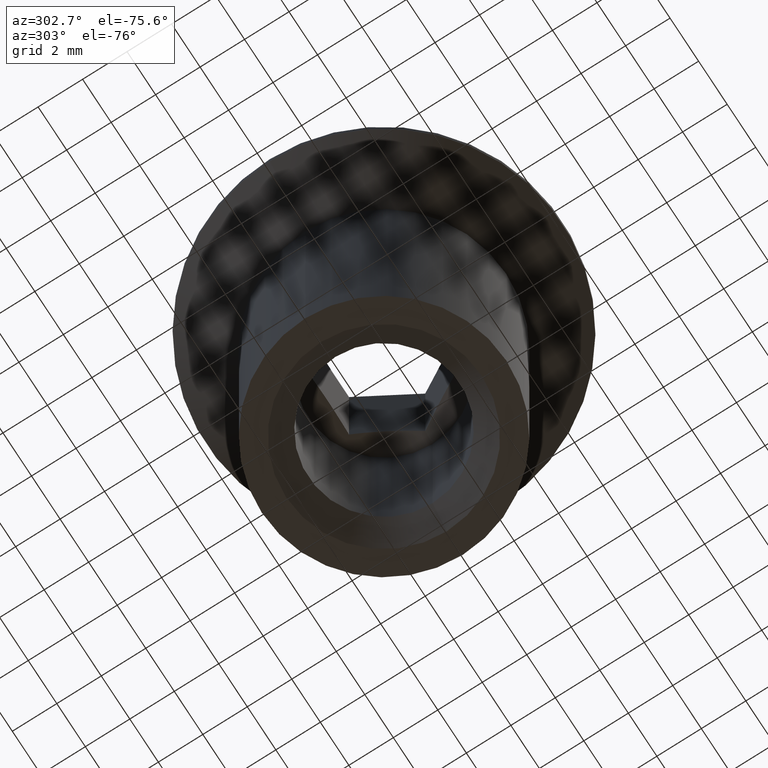
[diagram: clean part render]
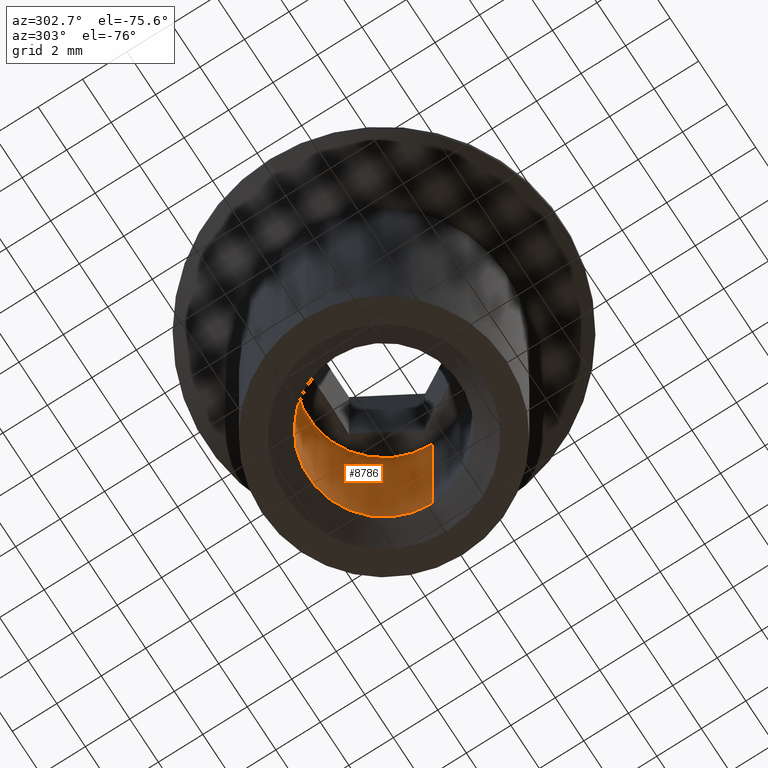
[diagram: same view with one face highlighted and labeled with its STEP entity id]
A machine part, auxiliary view. The second image highlights one B-rep face of the part: STEP entity #8786.
In plain terms, the highlighted cylindrical surface (partial cylindrical patch) has radius 3.4 mm, axis along (-0, -0, -1).
Its self-contained STEP definition (entity closure, byte-faithful):
#309 = LINE ( 'NONE', #6177, #6655 ) ;
#720 = EDGE_CURVE ( 'NONE', #2316, #5857, #9869, .T. ) ;
#861 = VERTEX_POINT ( 'NONE', #3351 ) ;
#1004 = CARTESIAN_POINT ( 'NONE',  ( 0.0000000000000000000, 0.0000000000000000000, -8.000000000000000000 ) ) ;
#2235 = CYLINDRICAL_SURFACE ( 'NONE', #14062, 3.399999999999998100 ) ;
#2267 = EDGE_CURVE ( 'NONE', #16294, #2316, #4053, .T. ) ;
#2291 = ORIENTED_EDGE ( 'NONE', *, *, #11213, .F. ) ;
#2316 = VERTEX_POINT ( 'NONE', #12723 ) ;
#2729 = DIRECTION ( 'NONE',  ( 0.0000000000000000000, 0.0000000000000000000, -1.000000000000000000 ) ) ;
#3351 = CARTESIAN_POINT ( 'NONE',  ( 3.399999999999997700, 4.163799117100997600E-016, 2.000000000000000000 ) ) ;
#3808 = DIRECTION ( 'NONE',  ( -0.0000000000000000000, -0.0000000000000000000, -1.000000000000000000 ) ) ;
#4053 = LINE ( 'NONE', #13730, #15816 ) ;
#5562 = ORIENTED_EDGE ( 'NONE', *, *, #720, .T. ) ;
#5740 = ORIENTED_EDGE ( 'NONE', *, *, #15429, .F. ) ;
#5857 = VERTEX_POINT ( 'NONE', #10292 ) ;
#6077 = DIRECTION ( 'NONE',  ( -0.0000000000000000000, -0.0000000000000000000, -1.000000000000000000 ) ) ;
#6169 = DIRECTION ( 'NONE',  ( -1.000000000000000000, 0.0000000000000000000, 0.0000000000000000000 ) ) ;
#6177 = CARTESIAN_POINT ( 'NONE',  ( 3.399999999999998100, 4.163799117100998100E-016, -8.000000000000000000 ) ) ;
#6200 = AXIS2_PLACEMENT_3D ( 'NONE', #6522, #2729, #9036 ) ;
#6522 = CARTESIAN_POINT ( 'NONE',  ( 0.0000000000000000000, 0.0000000000000000000, -7.000000000000006200 ) ) ;
#6655 = VECTOR ( 'NONE', #3808, 1000.000000000000000 ) ;
#8381 = CIRCLE ( 'NONE', #10220, 3.399999999999997700 ) ;
#8688 = DIRECTION ( 'NONE',  ( -0.0000000000000000000, -0.0000000000000000000, -1.000000000000000000 ) ) ;
#8728 = DIRECTION ( 'NONE',  ( -0.0000000000000000000, -0.0000000000000000000, -1.000000000000000000 ) ) ;
#8786 = ADVANCED_FACE ( 'NONE', ( #13619 ), #2235, .F. ) ;
#8890 = CARTESIAN_POINT ( 'NONE',  ( 0.0000000000000000000, 0.0000000000000000000, 2.000000000000000000 ) ) ;
#9036 = DIRECTION ( 'NONE',  ( -1.000000000000000000, 0.0000000000000000000, 0.0000000000000000000 ) ) ;
#9723 = CARTESIAN_POINT ( 'NONE',  ( -3.399999999999997700, 0.0000000000000000000, 2.000000000000000000 ) ) ;
#9794 = ORIENTED_EDGE ( 'NONE', *, *, #2267, .T. ) ;
#9869 = CIRCLE ( 'NONE', #6200, 3.399999999999998100 ) ;
#10220 = AXIS2_PLACEMENT_3D ( 'NONE', #8890, #8728, #12465 ) ;
#10292 = CARTESIAN_POINT ( 'NONE',  ( 3.399999999999998100, 4.163799117100998100E-016, -7.000000000000006200 ) ) ;
#11213 = EDGE_CURVE ( 'NONE', #16294, #861, #8381, .T. ) ;
#12465 = DIRECTION ( 'NONE',  ( -1.000000000000000000, 0.0000000000000000000, 0.0000000000000000000 ) ) ;
#12723 = CARTESIAN_POINT ( 'NONE',  ( -3.399999999999998100, 0.0000000000000000000, -7.000000000000006200 ) ) ;
#13227 = EDGE_LOOP ( 'NONE', ( #5740, #2291, #9794, #5562 ) ) ;
#13619 = FACE_OUTER_BOUND ( 'NONE', #13227, .T. ) ;
#13730 = CARTESIAN_POINT ( 'NONE',  ( -3.399999999999998100, 0.0000000000000000000, -8.000000000000000000 ) ) ;
#14062 = AXIS2_PLACEMENT_3D ( 'NONE', #1004, #8688, #6169 ) ;
#15429 = EDGE_CURVE ( 'NONE', #861, #5857, #309, .T. ) ;
#15816 = VECTOR ( 'NONE', #6077, 1000.000000000000000 ) ;
#16294 = VERTEX_POINT ( 'NONE', #9723 ) ;